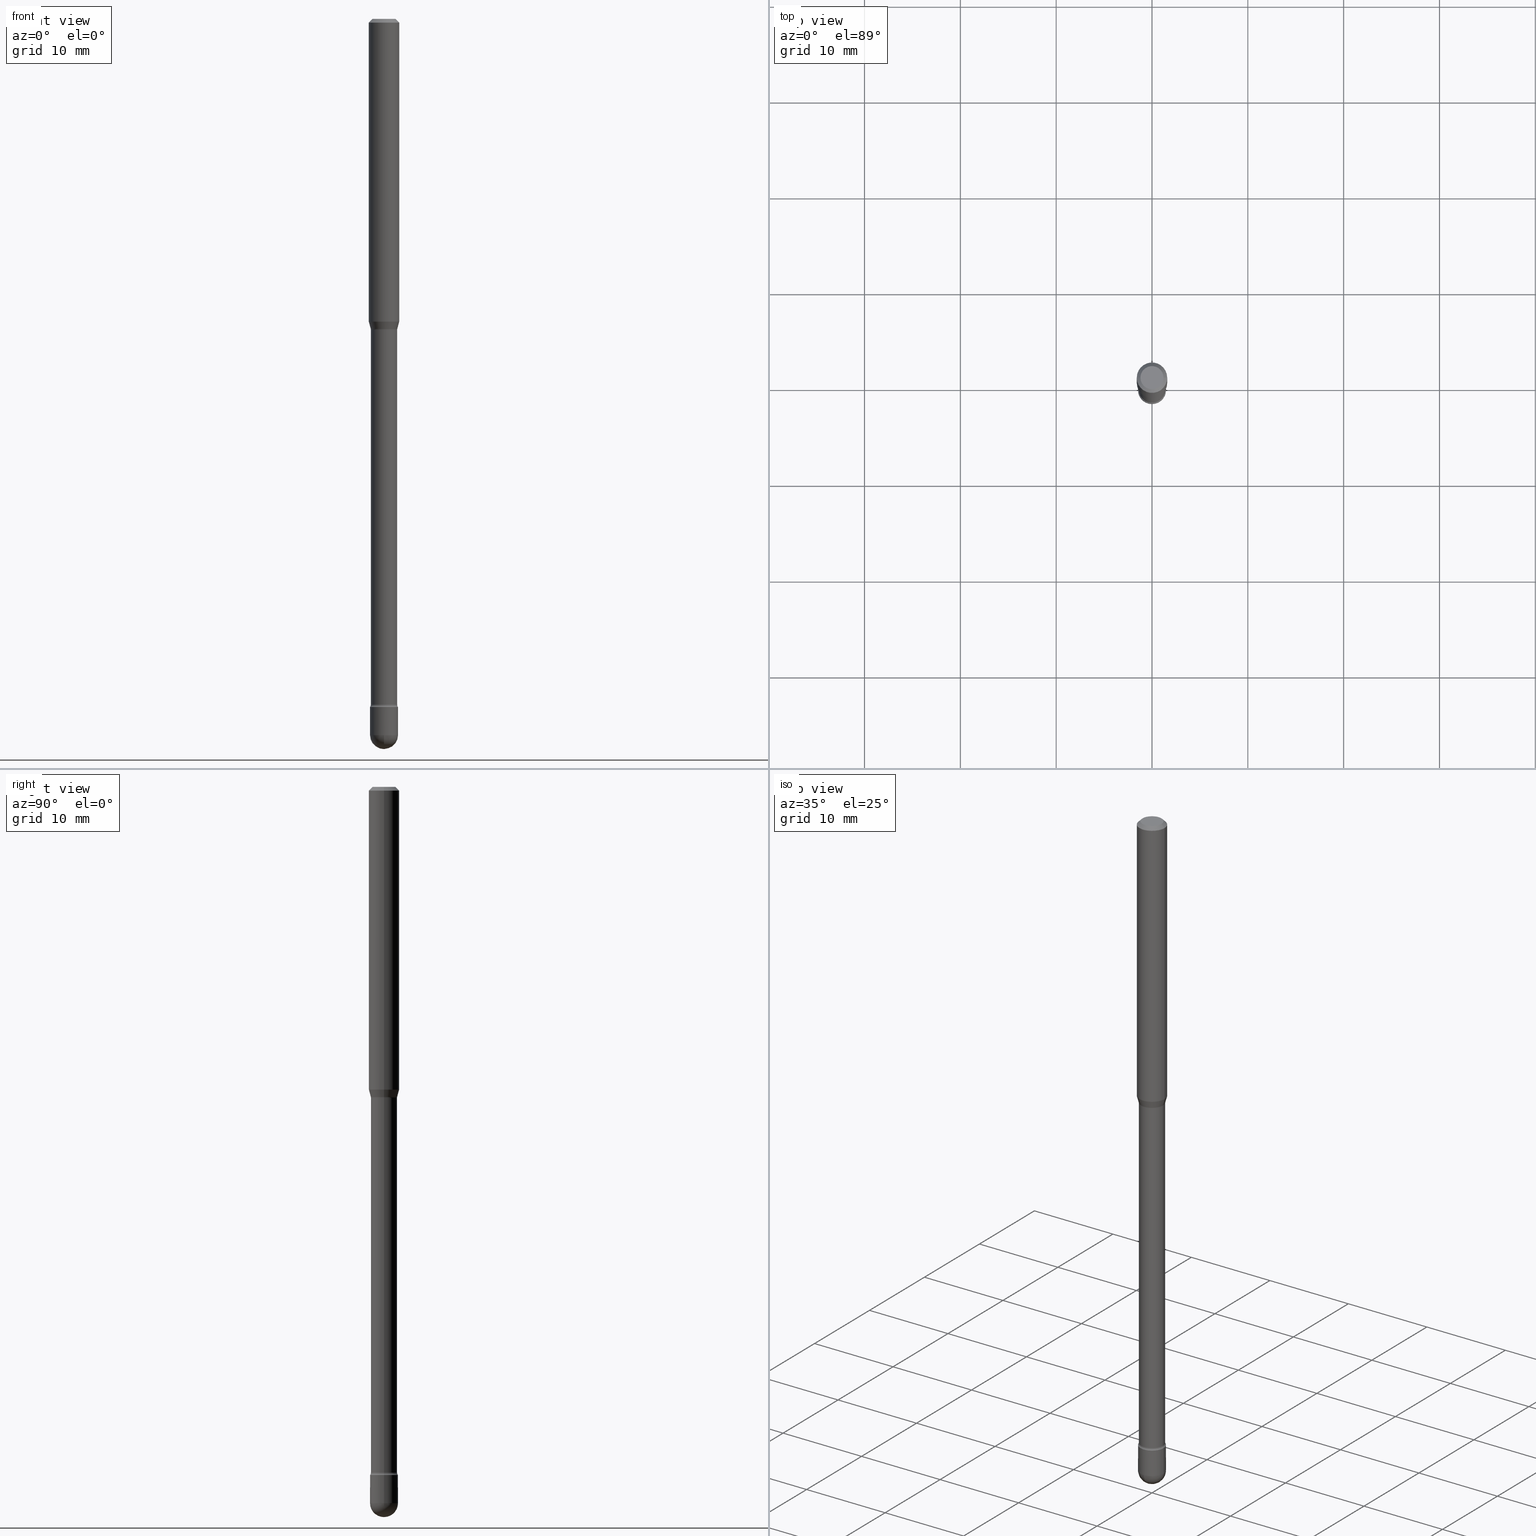
[diagram: canonical four-view strip — front | top / right | iso, engineering-drawing reading convention]
A machine part, canonical four-view strip (front | top / right | iso — engineering-drawing reading convention). The complete STEP part file that produces these views, byte-faithful:
ISO-10303-21;
HEADER;
FILE_DESCRIPTION (( 'STEP AP203' ),
    '1' );
FILE_NAME ('09582.STEP',
    '2024-04-10T01:04:10',
    ( '' ),
    ( '' ),
    'SwSTEP 2.0',
    'SolidWorks 2023',
    '' );
FILE_SCHEMA (( 'CONFIG_CONTROL_DESIGN' ));
ENDSEC;

DATA;
#1 = CYLINDRICAL_SURFACE ( 'NONE', #156, 0.05404999999999999388 ) ;
#2 =( NAMED_UNIT ( * ) SI_UNIT ( $, .STERADIAN. ) SOLID_ANGLE_UNIT ( ) );
#3 = CARTESIAN_POINT ( 'NONE',  ( 7.195791962199764526E-29, -1.027368383954595634E-14, -2.942499999999999893 ) ) ;
#4 = AXIS2_PLACEMENT_3D ( 'NONE', #451, #495, #160 ) ;
#5 = ADVANCED_FACE ( 'NONE', ( #99 ), #1, .T. ) ;
#6 = EDGE_LOOP ( 'NONE', ( #94, #422, #18, #175 ) ) ;
#7 =( NAMED_UNIT ( * ) PLANE_ANGLE_UNIT ( ) SI_UNIT ( $, .RADIAN. ) );
#8 = DIRECTION ( 'NONE',  ( 1.000000000000000000, -6.982962677686267499E-15, 0.000000000000000000 ) ) ;
#9 = CALENDAR_DATE ( 2024, 9, 4 ) ;
#10 = CC_DESIGN_PERSON_AND_ORGANIZATION_ASSIGNMENT ( #192, #318, ( #549 ) ) ;
#11 = LINE ( 'NONE', #500, #419 ) ;
#12 = EDGE_CURVE ( 'NONE', #453, #463, #473, .T. ) ;
#13 = VECTOR ( 'NONE', #229, 39.37007874015748854 ) ;
#14 = APPROVAL_STATUS ( 'not_yet_approved' ) ;
#15 = AXIS2_PLACEMENT_3D ( 'NONE', #36, #32, #294 ) ;
#16 = DIRECTION ( 'NONE',  ( 6.982962677686265922E-15, 1.000000000000000000, 0.000000000000000000 ) ) ;
#17 = CARTESIAN_POINT ( 'NONE',  ( 6.913340315085382316E-29, -9.870417744909574031E-15, -2.827000000000000401 ) ) ;
#18 = ORIENTED_EDGE ( 'NONE', *, *, #401, .T. ) ;
#19 = DATE_AND_TIME ( #362, #188 ) ;
#20 = DIRECTION ( 'NONE',  ( 1.000000000000000000, -6.982962677686265922E-15, 4.876176775795935232E-29 ) ) ;
#21 = PERSON_AND_ORGANIZATION_ROLE ( 'creator' ) ;
#22 = AXIS2_PLACEMENT_3D ( 'NONE', #263, #43, #177 ) ;
#23 = CARTESIAN_POINT ( 'NONE',  ( 7.195791962199764526E-29, -1.027368383954595634E-14, -2.942499999999999893 ) ) ;
#24 = CIRCLE ( 'NONE', #126, 0.05750000000000000250 ) ;
#25 = ORIENTED_EDGE ( 'NONE', *, *, #287, .T. ) ;
#26 = PRODUCT_DEFINITION ( 'UNKNOWN', '', #420, #139 ) ;
#27 = PLANE ( 'NONE',  #106 ) ;
#28 = ORIENTED_EDGE ( 'NONE', *, *, #257, .T. ) ;
#29 = DIRECTION ( 'NONE',  ( 1.000000000000000000, -6.982962677686265922E-15, 4.876176775795935232E-29 ) ) ;
#30 = ADVANCED_FACE ( 'NONE', ( #265 ), #250, .T. ) ;
#31 = VERTEX_POINT ( 'NONE', #485 ) ;
#32 = DIRECTION ( 'NONE',  ( -2.445468806185136597E-29, 3.491481338843145583E-15, 1.000000000000000000 ) ) ;
#33 = CIRCLE ( 'NONE', #546, 0.05750000000000000250 ) ;
#34 = ORIENTED_EDGE ( 'NONE', *, *, #132, .F. ) ;
#35 = EDGE_LOOP ( 'NONE', ( #127, #512, #210, #254, #471 ) ) ;
#36 = CARTESIAN_POINT ( 'NONE',  ( 6.889935568795809204E-29, -9.837001970108552726E-15, -2.817429341715430358 ) ) ;
#37 = VERTEX_POINT ( 'NONE', #391 ) ;
#38 = ADVANCED_FACE ( 'NONE', ( #315 ), #183, .F. ) ;
#39 = ORIENTED_EDGE ( 'NONE', *, *, #472, .F. ) ;
#40 = AXIS2_PLACEMENT_3D ( 'NONE', #322, #281, #504 ) ;
#41 = CC_DESIGN_APPROVAL ( #74, ( #420 ) ) ;
#42 = DIRECTION ( 'NONE',  ( 0.2588190451025229044, 1.565188264969609149E-15, 0.9659258262890676461 ) ) ;
#43 = DIRECTION ( 'NONE',  ( -2.445468806185136597E-29, 3.491481338843145583E-15, 1.000000000000000000 ) ) ;
#44 = DIRECTION ( 'NONE',  ( 1.000000000000000000, -6.982962677686267499E-15, 0.000000000000000000 ) ) ;
#45 = DIRECTION ( 'NONE',  ( 6.982962677686266711E-15, 1.000000000000000000, 0.000000000000000000 ) ) ;
#46 = ADVANCED_FACE ( 'NONE', ( #565 ), #92, .T. ) ;
#47 = ORIENTED_EDGE ( 'NONE', *, *, #403, .F. ) ;
#48 = AXIS2_PLACEMENT_3D ( 'NONE', #367, #411, #542 ) ;
#49 = AXIS2_PLACEMENT_3D ( 'NONE', #75, #475, #517 ) ;
#50 = DIRECTION ( 'NONE',  ( -2.445468806185136597E-29, 3.491481338843145583E-15, 1.000000000000000000 ) ) ;
#51 = CARTESIAN_POINT ( 'NONE',  ( 6.889935568795809204E-29, -9.837001970108552726E-15, -2.817429341715430358 ) ) ;
#52 = ADVANCED_FACE ( 'NONE', ( #525 ), #534, .T. ) ;
#53 = DIRECTION ( 'NONE',  ( 1.000000000000000000, -6.982962677686267499E-15, 4.884662768193073002E-29 ) ) ;
#54 = APPROVAL_DATE_TIME ( #446, #292 ) ;
#55 = CARTESIAN_POINT ( 'NONE',  ( -0.06250000000000000000, 4.440892098500642925E-16, 4.780733988912429571E-16 ) ) ;
#56 = ORIENTED_EDGE ( 'NONE', *, *, #122, .F. ) ;
#57 = CONICAL_SURFACE ( 'NONE', #4, 0.06250000000000000000, 0.7853981633974483900 ) ;
#58 = SHAPE_DEFINITION_REPRESENTATION ( #370, #109 ) ;
#59 = TOROIDAL_SURFACE ( 'NONE', #409, 0.06905000000000019456, 0.01500000000000020761 ) ;
#60 = EDGE_CURVE ( 'NONE', #31, #289, #345, .T. ) ;
#61 = DIRECTION ( 'NONE',  ( -2.445468806185136597E-29, 3.491481338843145583E-15, 1.000000000000000000 ) ) ;
#62 = EDGE_LOOP ( 'NONE', ( #256, #384, #522, #195 ) ) ;
#63 = APPROVAL_ROLE ( '' ) ;
#64 = CARTESIAN_POINT ( 'NONE',  ( -0.05456111260566397919, -4.057298690441964961E-15, -1.273092501787273401 ) ) ;
#65 = ORIENTED_EDGE ( 'NONE', *, *, #249, .F. ) ;
#66 = EDGE_CURVE ( 'NONE', #176, #453, #378, .T. ) ;
#67 = DIRECTION ( 'NONE',  ( -2.445468806185136597E-29, 3.491481338843145583E-15, 1.000000000000000000 ) ) ;
#68 = VERTEX_POINT ( 'NONE', #398 ) ;
#69 = CARTESIAN_POINT ( 'NONE',  ( -0.05750000000000000250, -9.663488719165706823E-15, -2.942499999999999893 ) ) ;
#70 = CIRCLE ( 'NONE', #397, 0.01500000000000020761 ) ;
#71 = ORIENTED_EDGE ( 'NONE', *, *, #153, .T. ) ;
#72 = DIRECTION ( 'NONE',  ( 1.000000000000000000, -6.982962677686262766E-15, 0.000000000000000000 ) ) ;
#73 = VERTEX_POINT ( 'NONE', #304 ) ;
#74 = APPROVAL ( #189, 'UNSPECIFIED' ) ;
#75 = CARTESIAN_POINT ( 'NONE',  ( -0.06905000000000000027, -3.967903881560739743E-15, -1.276974787463811323 ) ) ;
#76 = ORIENTED_EDGE ( 'NONE', *, *, #60, .T. ) ;
#77 = DIRECTION ( 'NONE',  ( -2.445468806185136597E-29, 3.491481338843145583E-15, 1.000000000000000000 ) ) ;
#78 = CIRCLE ( 'NONE', #198, 0.04749999999999999362 ) ;
#79 = CIRCLE ( 'NONE', #279, 0.01500000000000001853 ) ;
#80 = VERTEX_POINT ( 'NONE', #138 ) ;
#81 = ADVANCED_FACE ( 'NONE', ( #180 ), #439, .T. ) ;
#82 = PERSON ( 'UNSPECIFIED', 'UNSPECIFIED', 'UNSPECIFIED', ('UNSPECIFIED'), ('UNSPECIFIED'), ('UNSPECIFIED') ) ;
#83 = CARTESIAN_POINT ( 'NONE',  ( 3.113308000508972240E-29, -4.444978712611398731E-15, -1.273092501787273401 ) ) ;
#84 = ORIENTED_EDGE ( 'NONE', *, *, #399, .T. ) ;
#85 = DIRECTION ( 'NONE',  ( 1.000000000000000000, -6.982962677686266711E-15, 0.000000000000000000 ) ) ;
#86 = ORIENTED_EDGE ( 'NONE', *, *, #178, .T. ) ;
#87 = DIRECTION ( 'NONE',  ( 1.000000000000000000, -6.982962677686265922E-15, 4.883557194083113462E-29 ) ) ;
#88 = FACE_OUTER_BOUND ( 'NONE', #543, .T. ) ;
#89 = VECTOR ( 'NONE', #197, 39.37007874015748143 ) ;
#90 = AXIS2_PLACEMENT_3D ( 'NONE', #245, #423, #29 ) ;
#91 = ADVANCED_FACE ( 'NONE', ( #488 ), #173, .F. ) ;
#92 = CYLINDRICAL_SURFACE ( 'NONE', #440, 0.05404999999999999388 ) ;
#93 = DIRECTION ( 'NONE',  ( -2.445468806185136597E-29, 3.491481338843145583E-15, 1.000000000000000000 ) ) ;
#94 = ORIENTED_EDGE ( 'NONE', *, *, #445, .F. ) ;
#95 = MECHANICAL_CONTEXT ( 'NONE', #150, 'mechanical' ) ;
#96 = VECTOR ( 'NONE', #360, 39.37007874015748143 ) ;
#97 = CIRCLE ( 'NONE', #208, 0.05456111260566397919 ) ;
#98 = APPROVAL_DATE_TIME ( #499, #74 ) ;
#99 = FACE_OUTER_BOUND ( 'NONE', #337, .T. ) ;
#100 = APPROVAL_ROLE ( '' ) ;
#101 = LINE ( 'NONE', #547, #89 ) ;
#102 = ADVANCED_FACE ( 'NONE', ( #88 ), #407, .T. ) ;
#103 = CARTESIAN_POINT ( 'NONE',  ( 3.040852840997134988E-29, -4.341531947435473751E-15, -1.243464170676043423 ) ) ;
#104 = ORIENTED_EDGE ( 'NONE', *, *, #178, .F. ) ;
#105 = VECTOR ( 'NONE', #131, 39.37007874015748143 ) ;
#106 = AXIS2_PLACEMENT_3D ( 'NONE', #425, #330, #172 ) ;
#107 = DATE_TIME_ROLE ( 'classification_date' ) ;
#108 = DIRECTION ( 'NONE',  ( 0.7071067811865475727, -7.319954787623256045E-15, -0.7071067811865474617 ) ) ;
#109 = ADVANCED_BREP_SHAPE_REPRESENTATION ( '09582', ( #506, #515, #333 ), #271 ) ;
#110 = EDGE_LOOP ( 'NONE', ( #259, #191, #86, #39 ) ) ;
#111 = DIRECTION ( 'NONE',  ( -7.105427357601000281E-15, -1.000000000000000000, 0.000000000000000000 ) ) ;
#112 = EDGE_CURVE ( 'NONE', #424, #527, #353, .T. ) ;
#113 = ORIENTED_EDGE ( 'NONE', *, *, #523, .F. ) ;
#114 = PLANE ( 'NONE',  #261 ) ;
#115 = ORIENTED_EDGE ( 'NONE', *, *, #112, .T. ) ;
#116 = FACE_OUTER_BOUND ( 'NONE', #205, .T. ) ;
#117 = SECURITY_CLASSIFICATION ( '', '', #314 ) ;
#118 = EDGE_LOOP ( 'NONE', ( #84, #410, #412, #113 ) ) ;
#119 = CARTESIAN_POINT ( 'NONE',  ( -4.085620730619858383E-16, -0.05750000000001030676, -2.942499999999999893 ) ) ;
#120 = EDGE_LOOP ( 'NONE', ( #325, #167, #428, #236 ) ) ;
#121 = FACE_OUTER_BOUND ( 'NONE', #448, .T. ) ;
#122 = EDGE_CURVE ( 'NONE', #466, #320, #437, .T. ) ;
#123 = ORIENTED_EDGE ( 'NONE', *, *, #536, .T. ) ;
#124 = CARTESIAN_POINT ( 'NONE',  ( 3.122802009027644982E-29, -4.458533640603088529E-15, -1.276974787463811323 ) ) ;
#125 = AXIS2_PLACEMENT_3D ( 'NONE', #348, #311, #389 ) ;
#126 = AXIS2_PLACEMENT_3D ( 'NONE', #375, #461, #559 ) ;
#127 = ORIENTED_EDGE ( 'NONE', *, *, #257, .F. ) ;
#128 = CARTESIAN_POINT ( 'NONE',  ( 6.889935568795809204E-29, -9.837001970108552726E-15, -2.817429341715430358 ) ) ;
#129 = ORIENTED_EDGE ( 'NONE', *, *, #181, .T. ) ;
#130 = DIRECTION ( 'NONE',  ( -2.445468806185136597E-29, 3.491481338843145583E-15, 1.000000000000000000 ) ) ;
#131 = DIRECTION ( 'NONE',  ( -2.445468806185136877E-29, 3.491481338843145188E-15, 1.000000000000000000 ) ) ;
#132 = EDGE_CURVE ( 'NONE', #37, #527, #11, .T. ) ;
#133 = DIRECTION ( 'NONE',  ( 6.982962677686266711E-15, 1.000000000000000000, 0.000000000000000000 ) ) ;
#134 = CARTESIAN_POINT ( 'NONE',  ( -1.169113584055446105E-44, 1.669184350826100908E-30, 4.780733988912460139E-16 ) ) ;
#135 = CIRCLE ( 'NONE', #450, 0.05750000000000000250 ) ;
#136 = VECTOR ( 'NONE', #42, 39.37007874015748854 ) ;
#137 = AXIS2_PLACEMENT_3D ( 'NONE', #347, #480, #87 ) ;
#138 = CARTESIAN_POINT ( 'NONE',  ( -0.04749999999999999362, 3.578768372314208041E-16, -8.274703207154778150E-17 ) ) ;
#139 = DESIGN_CONTEXT ( 'detailed design', #413, 'design' ) ;
#140 = DIRECTION ( 'NONE',  ( 1.000000000000000000, 0.000000000000000000, 0.000000000000000000 ) ) ;
#141 = VERTEX_POINT ( 'NONE', #190 ) ;
#142 = PERSON_AND_ORGANIZATION ( #82, #225 ) ;
#143 = DIRECTION ( 'NONE',  ( -2.445468806185136877E-29, 3.491481338843145188E-15, 1.000000000000000000 ) ) ;
#144 = CIRCLE ( 'NONE', #262, 0.06250000000000000000 ) ;
#145 = CC_DESIGN_APPROVAL ( #292, ( #117 ) ) ;
#146 = COORDINATED_UNIVERSAL_TIME_OFFSET ( 5, 0, .BEHIND. ) ;
#147 = FACE_OUTER_BOUND ( 'NONE', #155, .T. ) ;
#148 = ORIENTED_EDGE ( 'NONE', *, *, #533, .T. ) ;
#149 = DIRECTION ( 'NONE',  ( -2.445468806185136597E-29, 3.491481338843145583E-15, 1.000000000000000000 ) ) ;
#150 = APPLICATION_CONTEXT ( 'configuration controlled 3d designs of mechanical parts and assemblies' ) ;
#151 = EDGE_CURVE ( 'NONE', #386, #562, #404, .T. ) ;
#152 = PERSON_AND_ORGANIZATION_ROLE ( 'design_supplier' ) ;
#153 = EDGE_CURVE ( 'NONE', #430, #562, #270, .T. ) ;
#154 = LINE ( 'NONE', #64, #13 ) ;
#155 = EDGE_LOOP ( 'NONE', ( #25, #372 ) ) ;
#156 = AXIS2_PLACEMENT_3D ( 'NONE', #134, #402, #309 ) ;
#157 = CIRCLE ( 'NONE', #474, 0.05405000000000000082 ) ;
#158 = PERSON_AND_ORGANIZATION ( #82, #225 ) ;
#159 = DIRECTION ( 'NONE',  ( 1.000000000000000000, -6.982962677686265922E-15, 4.883557194083112340E-29 ) ) ;
#160 = DIRECTION ( 'NONE',  ( -1.000000000000000000, 6.982962677686266711E-15, 0.000000000000000000 ) ) ;
#161 = CARTESIAN_POINT ( 'NONE',  ( -0.06250000000000000000, -3.897442737585411135E-15, -1.243464170676043423 ) ) ;
#162 = ORIENTED_EDGE ( 'NONE', *, *, #392, .T. ) ;
#163 = AXIS2_PLACEMENT_3D ( 'NONE', #283, #149, #53 ) ;
#164 = DIRECTION ( 'NONE',  ( 7.105427357601001859E-15, 1.000000000000000000, -3.491481338843145583E-15 ) ) ;
#165 = AXIS2_PLACEMENT_3D ( 'NONE', #435, #226, #133 ) ;
#166 = CC_DESIGN_SECURITY_CLASSIFICATION ( #117, ( #420 ) ) ;
#167 = ORIENTED_EDGE ( 'NONE', *, *, #293, .T. ) ;
#168 = CARTESIAN_POINT ( 'NONE',  ( 0.05404999999999998694, -1.021443110283749521E-14, -2.817429341715430358 ) ) ;
#169 = EDGE_LOOP ( 'NONE', ( #291, #129, #239, #555 ) ) ;
#170 = CARTESIAN_POINT ( 'NONE',  ( -0.05750000000000000250, -9.663488719165706823E-15, -2.827000000000000401 ) ) ;
#171 = ORIENTED_EDGE ( 'NONE', *, *, #552, .T. ) ;
#172 = DIRECTION ( 'NONE',  ( 1.000000000000000000, -6.982962677686265922E-15, 4.876176775795935793E-29 ) ) ;
#173 = TOROIDAL_SURFACE ( 'NONE', #217, 0.06905000000000019456, 0.01500000000000020761 ) ;
#174 = CIRCLE ( 'NONE', #452, 0.05456111260566397919 ) ;
#175 = ORIENTED_EDGE ( 'NONE', *, *, #310, .T. ) ;
#176 = VERTEX_POINT ( 'NONE', #364 ) ;
#177 = DIRECTION ( 'NONE',  ( 1.000000000000000000, -6.982962677686266711E-15, 4.852736867747366207E-29 ) ) ;
#178 = EDGE_CURVE ( 'NONE', #469, #382, #319, .T. ) ;
#179 = CARTESIAN_POINT ( 'NONE',  ( -0.05456111260566397919, -3.977370714013688837E-15, -1.273092501787273401 ) ) ;
#180 = FACE_OUTER_BOUND ( 'NONE', #201, .T. ) ;
#181 = EDGE_CURVE ( 'NONE', #339, #176, #324, .T. ) ;
#182 = CARTESIAN_POINT ( 'NONE',  ( 0.000000000000000000, 0.000000000000000000, 0.000000000000000000 ) ) ;
#183 = PLANE ( 'NONE',  #125 ) ;
#184 = CARTESIAN_POINT ( 'NONE',  ( 0.05456111260566397919, -4.825976925589788049E-15, -1.273092501787273401 ) ) ;
#185 = CARTESIAN_POINT ( 'NONE',  ( 3.113308000508972240E-29, -4.444978712611398731E-15, -1.273092501787273401 ) ) ;
#186 = DIRECTION ( 'NONE',  ( -2.445468806185136877E-29, 3.491481338843145188E-15, 1.000000000000000000 ) ) ;
#187 = UNCERTAINTY_MEASURE_WITH_UNIT (LENGTH_MEASURE( 1.000000000000000082E-05 ), #264, 'distance_accuracy_value', 'NONE');
#188 = LOCAL_TIME ( 21, 4, 10.00000000000000000, #405 ) ;
#189 = APPROVAL_STATUS ( 'not_yet_approved' ) ;
#190 = CARTESIAN_POINT ( 'NONE',  ( 0.05750000000000014128, -1.027193809887653405E-14, -2.827000000000000401 ) ) ;
#191 = ORIENTED_EDGE ( 'NONE', *, *, #467, .T. ) ;
#192 = PERSON_AND_ORGANIZATION ( #82, #225 ) ;
#193 = PRODUCT_RELATED_PRODUCT_CATEGORY ( 'detail', '', ( #549 ) ) ;
#194 = FACE_OUTER_BOUND ( 'NONE', #284, .T. ) ;
#195 = ORIENTED_EDGE ( 'NONE', *, *, #530, .T. ) ;
#196 = ADVANCED_FACE ( 'NONE', ( #538 ), #327, .T. ) ;
#197 = DIRECTION ( 'NONE',  ( -2.445468806185136877E-29, 3.491481338843145188E-15, 1.000000000000000000 ) ) ;
#198 = AXIS2_PLACEMENT_3D ( 'NONE', #540, #67, #285 ) ;
#199 = PERSON_AND_ORGANIZATION ( #82, #225 ) ;
#200 = DIRECTION ( 'NONE',  ( 2.438088387897960049E-29, -3.491481338843145188E-15, -1.000000000000000000 ) ) ;
#201 = EDGE_LOOP ( 'NONE', ( #56, #246, #115, #47 ) ) ;
#202 = CARTESIAN_POINT ( 'NONE',  ( 0.05405000000000000082, -4.835962773332031011E-15, -1.276974787463811323 ) ) ;
#203 = ORIENTED_EDGE ( 'NONE', *, *, #310, .F. ) ;
#204 = CARTESIAN_POINT ( 'NONE',  ( 0.06905000000000000027, -4.940707213497325170E-15, -1.276974787463811323 ) ) ;
#205 = EDGE_LOOP ( 'NONE', ( #34, #295, #492, #432 ) ) ;
#206 = ADVANCED_FACE ( 'NONE', ( #329 ), #57, .T. ) ;
#207 = TOROIDAL_SURFACE ( 'NONE', #48, 0.06905000000000000027, 0.01500000000000002720 ) ;
#208 = AXIS2_PLACEMENT_3D ( 'NONE', #83, #77, #342 ) ;
#209 = DIRECTION ( 'NONE',  ( -2.445468806185136597E-29, 3.491481338843145583E-15, 1.000000000000000000 ) ) ;
#210 = ORIENTED_EDGE ( 'NONE', *, *, #510, .T. ) ;
#211 = CARTESIAN_POINT ( 'NONE',  ( 3.668203209277725232E-31, -5.237222008264747365E-17, -0.01500000000000008271 ) ) ;
#212 = ORIENTED_EDGE ( 'NONE', *, *, #408, .T. ) ;
#213 = ADVANCED_FACE ( 'NONE', ( #147 ), #114, .F. ) ;
#214 = DIRECTION ( 'NONE',  ( 1.000000000000000000, -6.982962677686269077E-15, 4.883557194083114022E-29 ) ) ;
#215 = ORIENTED_EDGE ( 'NONE', *, *, #268, .F. ) ;
#216 = LENGTH_MEASURE_WITH_UNIT ( LENGTH_MEASURE( 0.02539999999999999897 ), #306 );
#217 = AXIS2_PLACEMENT_3D ( 'NONE', #51, #486, #227 ) ;
#218 = ADVANCED_FACE ( 'NONE', ( #194 ), #207, .F. ) ;
#219 = CARTESIAN_POINT ( 'NONE',  ( 7.195791962199764526E-29, -1.027368383954595634E-14, -2.942499999999999893 ) ) ;
#220 = CARTESIAN_POINT ( 'NONE',  ( 3.122802009027644982E-29, -4.458533640603088529E-15, -1.276974787463811323 ) ) ;
#221 = DIRECTION ( 'NONE',  ( -2.445468806185136597E-29, 3.491481338843145583E-15, 1.000000000000000000 ) ) ;
#222 = DIRECTION ( 'NONE',  ( 1.000000000000000000, -6.982962677686273810E-15, 0.000000000000000000 ) ) ;
#223 = CARTESIAN_POINT ( 'NONE',  ( -0.05404999999999999388, 3.840483486783357833E-16, 4.780733988912433515E-16 ) ) ;
#224 = CARTESIAN_POINT ( 'NONE',  ( -1.169113584055446105E-44, 1.669184350826100908E-30, 4.780733988912460139E-16 ) ) ;
#225 = ORGANIZATION ( 'UNSPECIFIED', 'UNSPECIFIED', '' ) ;
#226 = DIRECTION ( 'NONE',  ( -1.000000000000000000, 6.982962677686266711E-15, -4.883557194083112901E-29 ) ) ;
#227 = DIRECTION ( 'NONE',  ( 1.000000000000000000, -6.982962677686269077E-15, 4.883557194083114022E-29 ) ) ;
#228 = COORDINATED_UNIVERSAL_TIME_OFFSET ( 5, 0, .BEHIND. ) ;
#229 = DIRECTION ( 'NONE',  ( -0.2588190451025229044, 5.211531920934558141E-15, 0.9659258262890676461 ) ) ;
#230 = APPROVAL_DATE_TIME ( #19, #493 ) ;
#231 = CARTESIAN_POINT ( 'NONE',  ( 0.05750000000000000250, -4.015203539669603161E-16, 2.803801646082662941E-30 ) ) ;
#232 = CIRCLE ( 'NONE', #305, 0.06250000000000000000 ) ;
#233 = AXIS2_PLACEMENT_3D ( 'NONE', #338, #209, #557 ) ;
#234 = PERSON_AND_ORGANIZATION ( #82, #225 ) ;
#235 = DIRECTION ( 'NONE',  ( -2.445468806185136597E-29, 3.491481338843145583E-15, 1.000000000000000000 ) ) ;
#236 = ORIENTED_EDGE ( 'NONE', *, *, #66, .F. ) ;
#237 = CALENDAR_DATE ( 2024, 9, 4 ) ;
#238 = CARTESIAN_POINT ( 'NONE',  ( 6.913340315085382316E-29, -9.870417744909574031E-15, -2.827000000000000401 ) ) ;
#239 = ORIENTED_EDGE ( 'NONE', *, *, #552, .F. ) ;
#240 = DATE_AND_TIME ( #494, #341 ) ;
#241 = DIRECTION ( 'NONE',  ( -2.445468806185136597E-29, 3.491481338843145583E-15, 1.000000000000000000 ) ) ;
#242 = ORIENTED_EDGE ( 'NONE', *, *, #414, .F. ) ;
#243 = LOCAL_TIME ( 21, 4, 10.00000000000000000, #228 ) ;
#244 = DIRECTION ( 'NONE',  ( -2.445468806185136597E-29, 3.491481338843145583E-15, 1.000000000000000000 ) ) ;
#245 = CARTESIAN_POINT ( 'NONE',  ( 0.000000000000000000, 0.000000000000000000, 0.000000000000000000 ) ) ;
#246 = ORIENTED_EDGE ( 'NONE', *, *, #300, .T. ) ;
#247 = DIRECTION ( 'NONE',  ( 1.000000000000000000, -6.982962677686266711E-15, 4.852736867747366207E-29 ) ) ;
#248 = ORIENTED_EDGE ( 'NONE', *, *, #536, .F. ) ;
#249 = EDGE_CURVE ( 'NONE', #496, #466, #154, .T. ) ;
#250 = CONICAL_SURFACE ( 'NONE', #507, 0.05456111260566397919, 0.2617993877991516838 ) ;
#251 = CC_DESIGN_DATE_AND_TIME_ASSIGNMENT ( #274, #107, ( #117 ) ) ;
#252 = CIRCLE ( 'NONE', #556, 0.05405000000000000082 ) ;
#253 = CARTESIAN_POINT ( 'NONE',  ( 7.338865021636799762E-29, -1.047092315698189034E-14, -3.000000000000000444 ) ) ;
#254 = ORIENTED_EDGE ( 'NONE', *, *, #151, .T. ) ;
#255 = DIRECTION ( 'NONE',  ( 1.000000000000000000, -6.982962677686300632E-15, 0.000000000000000000 ) ) ;
#256 = ORIENTED_EDGE ( 'NONE', *, *, #354, .F. ) ;
#257 = EDGE_CURVE ( 'NONE', #453, #430, #101, .T. ) ;
#258 = FACE_OUTER_BOUND ( 'NONE', #62, .T. ) ;
#259 = ORIENTED_EDGE ( 'NONE', *, *, #60, .F. ) ;
#260 = SPHERICAL_SURFACE ( 'NONE', #165, 0.05750000000000007189 ) ;
#261 = AXIS2_PLACEMENT_3D ( 'NONE', #456, #200, #459 ) ;
#262 = AXIS2_PLACEMENT_3D ( 'NONE', #336, #427, #383 ) ;
#263 = CARTESIAN_POINT ( 'NONE',  ( -1.169113584055446105E-44, 1.669184350826100908E-30, 4.780733988912460139E-16 ) ) ;
#264 =( CONVERSION_BASED_UNIT ( 'INCH', #216 ) LENGTH_UNIT ( ) NAMED_UNIT ( #489 ) );
#265 = FACE_OUTER_BOUND ( 'NONE', #118, .T. ) ;
#266 = DIRECTION ( 'NONE',  ( -0.7071067811865475727, 2.468850131082257455E-15, -0.7071067811865474617 ) ) ;
#267 = DIRECTION ( 'NONE',  ( 1.000000000000000000, -6.982962677686267499E-15, 0.000000000000000000 ) ) ;
#268 = EDGE_CURVE ( 'NONE', #37, #80, #365, .T. ) ;
#269 = CARTESIAN_POINT ( 'NONE',  ( 3.113308000508972240E-29, -4.444978712611398731E-15, -1.273092501787273401 ) ) ;
#270 = CIRCLE ( 'NONE', #40, 0.05750000000000000250 ) ;
#271 =( GEOMETRIC_REPRESENTATION_CONTEXT ( 3 ) GLOBAL_UNCERTAINTY_ASSIGNED_CONTEXT ( ( #187 ) ) GLOBAL_UNIT_ASSIGNED_CONTEXT ( ( #264, #7, #2 ) ) REPRESENTATION_CONTEXT ( 'NONE', 'WORKASPACE' ) );
#272 = PERSON_AND_ORGANIZATION_ROLE ( 'classification_officer' ) ;
#273 = DIRECTION ( 'NONE',  ( 1.000000000000000000, -6.982962677686273810E-15, 0.000000000000000000 ) ) ;
#274 = DATE_AND_TIME ( #9, #298 ) ;
#275 = DIRECTION ( 'NONE',  ( 1.000000000000000000, -6.982962677686273810E-15, 0.000000000000000000 ) ) ;
#276 = DIRECTION ( 'NONE',  ( -2.445468806185136877E-29, 3.491481338843145188E-15, 1.000000000000000000 ) ) ;
#277 = AXIS2_PLACEMENT_3D ( 'NONE', #17, #241, #323 ) ;
#278 = ORIENTED_EDGE ( 'NONE', *, *, #445, .T. ) ;
#279 = AXIS2_PLACEMENT_3D ( 'NONE', #204, #553, #334 ) ;
#280 = COORDINATED_UNIVERSAL_TIME_OFFSET ( 5, 0, .BEHIND. ) ;
#281 = DIRECTION ( 'NONE',  ( -2.445468806185136597E-29, 3.491481338843145583E-15, 1.000000000000000000 ) ) ;
#282 = ORIENTED_EDGE ( 'NONE', *, *, #66, .T. ) ;
#283 = CARTESIAN_POINT ( 'NONE',  ( 2.023552857353652888E-45, -2.889097183224559242E-31, -8.274703207154537794E-17 ) ) ;
#284 = EDGE_LOOP ( 'NONE', ( #248, #361, #343, #242 ) ) ;
#285 = DIRECTION ( 'NONE',  ( 1.000000000000000000, -6.982962677686267499E-15, 4.884662768193073002E-29 ) ) ;
#286 = CLOSED_SHELL ( 'NONE', ( #218, #5, #371, #206, #349, #30, #102, #81, #373, #213, #38, #91, #46, #497 ) ) ;
#287 = EDGE_CURVE ( 'NONE', #80, #37, #78, .T. ) ;
#288 = DIRECTION ( 'NONE',  ( -6.982962677686266711E-15, -1.000000000000000000, 3.491481338843145583E-15 ) ) ;
#289 = VERTEX_POINT ( 'NONE', #503 ) ;
#290 = DIRECTION ( 'NONE',  ( -2.445468806185136597E-29, 3.491481338843145583E-15, 1.000000000000000000 ) ) ;
#291 = ORIENTED_EDGE ( 'NONE', *, *, #293, .F. ) ;
#292 = APPROVAL ( #443, 'UNSPECIFIED' ) ;
#293 = EDGE_CURVE ( 'NONE', #339, #463, #519, .T. ) ;
#294 = DIRECTION ( 'NONE',  ( 1.000000000000000000, -6.982962677686250933E-15, 0.000000000000000000 ) ) ;
#295 = ORIENTED_EDGE ( 'NONE', *, *, #287, .F. ) ;
#296 = CONICAL_SURFACE ( 'NONE', #357, 0.06250000000000000000, 0.7853981633974483900 ) ;
#297 = DIRECTION ( 'NONE',  ( -1.000000000000000000, 6.982962677686266711E-15, 0.000000000000000000 ) ) ;
#298 = LOCAL_TIME ( 21, 4, 10.00000000000000000, #280 ) ;
#299 = ORIENTED_EDGE ( 'NONE', *, *, #112, .F. ) ;
#300 = EDGE_CURVE ( 'NONE', #466, #424, #232, .T. ) ;
#301 = DIRECTION ( 'NONE',  ( -2.445468806185136597E-29, 3.491481338843145583E-15, 1.000000000000000000 ) ) ;
#302 = ORIENTED_EDGE ( 'NONE', *, *, #122, .T. ) ;
#303 = LINE ( 'NONE', #566, #464 ) ;
#304 = CARTESIAN_POINT ( 'NONE',  ( 0.05456111260566397919, -4.825976925589788049E-15, -1.273092501787273401 ) ) ;
#305 = AXIS2_PLACEMENT_3D ( 'NONE', #103, #61, #415 ) ;
#306 =( LENGTH_UNIT ( ) NAMED_UNIT ( * ) SI_UNIT ( $, .METRE. ) );
#307 = AXIS2_PLACEMENT_3D ( 'NONE', #269, #221, #8 ) ;
#308 = TOROIDAL_SURFACE ( 'NONE', #137, 0.06905000000000000027, 0.01500000000000002720 ) ;
#309 = DIRECTION ( 'NONE',  ( 1.000000000000000000, -6.982962677686266711E-15, 4.825802158028139437E-29 ) ) ;
#310 = EDGE_CURVE ( 'NONE', #141, #68, #135, .T. ) ;
#311 = DIRECTION ( 'NONE',  ( -2.438088387897960049E-29, 3.491481338843145188E-15, 1.000000000000000000 ) ) ;
#312 = DIRECTION ( 'NONE',  ( -2.445468806185136597E-29, 3.491481338843145583E-15, 1.000000000000000000 ) ) ;
#313 = DIRECTION ( 'NONE',  ( -1.000000000000000000, 6.982962677686266711E-15, -4.883557194083112901E-29 ) ) ;
#314 = SECURITY_CLASSIFICATION_LEVEL ( 'unclassified' ) ;
#315 = FACE_OUTER_BOUND ( 'NONE', #426, .T. ) ;
#316 = CIRCLE ( 'NONE', #49, 0.01500000000000001853 ) ;
#317 = EDGE_CURVE ( 'NONE', #562, #430, #528, .T. ) ;
#318 = PERSON_AND_ORGANIZATION_ROLE ( 'design_owner' ) ;
#319 = LINE ( 'NONE', #406, #482 ) ;
#320 = VERTEX_POINT ( 'NONE', #418 ) ;
#321 = PERSON_AND_ORGANIZATION_ROLE ( 'creator' ) ;
#322 = CARTESIAN_POINT ( 'NONE',  ( 6.913340315085382316E-29, -9.870417744909574031E-15, -2.827000000000000401 ) ) ;
#323 = DIRECTION ( 'NONE',  ( 1.000000000000000000, -6.982962677686273810E-15, 0.000000000000000000 ) ) ;
#324 = CIRCLE ( 'NONE', #356, 0.05750000000000007189 ) ;
#325 = ORIENTED_EDGE ( 'NONE', *, *, #181, .F. ) ;
#326 = CIRCLE ( 'NONE', #15, 0.05404999999999998694 ) ;
#327 = CYLINDRICAL_SURFACE ( 'NONE', #433, 0.05750000000000000250 ) ;
#328 = CC_DESIGN_PERSON_AND_ORGANIZATION_ASSIGNMENT ( #158, #321, ( #420 ) ) ;
#329 = FACE_OUTER_BOUND ( 'NONE', #516, .T. ) ;
#330 = DIRECTION ( 'NONE',  ( -2.438088387897960049E-29, 3.491481338843145188E-15, 1.000000000000000000 ) ) ;
#331 = ORIENTED_EDGE ( 'NONE', *, *, #479, .F. ) ;
#332 = AXIS2_PLACEMENT_3D ( 'NONE', #531, #313, #45 ) ;
#333 = AXIS2_PLACEMENT_3D ( 'NONE', #182, #532, #140 ) ;
#334 = DIRECTION ( 'NONE',  ( 1.000000000000000000, -6.982962677686259611E-15, 0.000000000000000000 ) ) ;
#335 = ORIENTED_EDGE ( 'NONE', *, *, #300, .F. ) ;
#336 = CARTESIAN_POINT ( 'NONE',  ( 3.668203209277725232E-31, -5.237222008264747365E-17, -0.01500000000000008271 ) ) ;
#337 = EDGE_LOOP ( 'NONE', ( #162, #76, #508, #104 ) ) ;
#338 = CARTESIAN_POINT ( 'NONE',  ( 6.889935568795809204E-29, -9.837001970108552726E-15, -2.817429341715430358 ) ) ;
#339 = VERTEX_POINT ( 'NONE', #253 ) ;
#340 = AXIS2_PLACEMENT_3D ( 'NONE', #498, #545, #111 ) ;
#341 = LOCAL_TIME ( 21, 4, 10.00000000000000000, #146 ) ;
#342 = DIRECTION ( 'NONE',  ( 1.000000000000000000, -6.982962677686267499E-15, 0.000000000000000000 ) ) ;
#343 = ORIENTED_EDGE ( 'NONE', *, *, #472, .T. ) ;
#344 = CARTESIAN_POINT ( 'NONE',  ( 7.195791962199764526E-29, -1.027368383954595634E-14, -2.942499999999999893 ) ) ;
#345 = LINE ( 'NONE', #223, #105 ) ;
#346 = EDGE_CURVE ( 'NONE', #424, #466, #483, .T. ) ;
#347 = CARTESIAN_POINT ( 'NONE',  ( 3.122802009027644982E-29, -4.458533640603088529E-15, -1.276974787463811323 ) ) ;
#348 = CARTESIAN_POINT ( 'NONE',  ( 4.015203539670294894E-16, 0.05749999999999013539, -2.827000000000000401 ) ) ;
#349 = ADVANCED_FACE ( 'NONE', ( #550 ), #385, .T. ) ;
#350 = CARTESIAN_POINT ( 'NONE',  ( 7.195791962199764526E-29, -1.027368383954595634E-14, -2.942499999999999893 ) ) ;
#351 = DIRECTION ( 'NONE',  ( -2.445468806185136597E-29, 3.491481338843145583E-15, 1.000000000000000000 ) ) ;
#352 = DIRECTION ( 'NONE',  ( 1.000000000000000000, -6.982962677686266711E-15, 0.000000000000000000 ) ) ;
#353 = LINE ( 'NONE', #537, #462 ) ;
#354 = EDGE_CURVE ( 'NONE', #496, #289, #316, .T. ) ;
#355 = CARTESIAN_POINT ( 'NONE',  ( 0.000000000000000000, 0.000000000000000000, 0.000000000000000000 ) ) ;
#356 = AXIS2_PLACEMENT_3D ( 'NONE', #23, #159, #16 ) ;
#357 = AXIS2_PLACEMENT_3D ( 'NONE', #211, #561, #297 ) ;
#358 = ORIENTED_EDGE ( 'NONE', *, *, #523, .T. ) ;
#359 = PERSON_AND_ORGANIZATION ( #82, #225 ) ;
#360 = DIRECTION ( 'NONE',  ( -2.445468806185136877E-29, 3.491481338843145188E-15, 1.000000000000000000 ) ) ;
#361 = ORIENTED_EDGE ( 'NONE', *, *, #354, .T. ) ;
#362 = CALENDAR_DATE ( 2024, 9, 4 ) ;
#363 = ADVANCED_FACE ( 'NONE', ( #429 ), #421, .T. ) ;
#364 = CARTESIAN_POINT ( 'NONE',  ( 4.015203539670324969E-16, 0.05749999999998976763, -2.942499999999999893 ) ) ;
#365 = CIRCLE ( 'NONE', #163, 0.04749999999999999362 ) ;
#366 = CIRCLE ( 'NONE', #380, 0.01500000000000020761 ) ;
#367 = CARTESIAN_POINT ( 'NONE',  ( 3.122802009027644982E-29, -4.458533640603088529E-15, -1.276974787463811323 ) ) ;
#368 = ORIENTED_EDGE ( 'NONE', *, *, #401, .F. ) ;
#369 = CARTESIAN_POINT ( 'NONE',  ( 0.06250000000000000000, -4.777967114790866210E-15, -1.243464170676043423 ) ) ;
#370 = PRODUCT_DEFINITION_SHAPE ( 'NONE', 'NONE',  #26 ) ;
#371 = ADVANCED_FACE ( 'NONE', ( #121 ), #59, .F. ) ;
#372 = ORIENTED_EDGE ( 'NONE', *, *, #268, .T. ) ;
#373 = ADVANCED_FACE ( 'NONE', ( #116 ), #296, .T. ) ;
#374 = CC_DESIGN_DATE_AND_TIME_ASSIGNMENT ( #240, #417, ( #26 ) ) ;
#375 = CARTESIAN_POINT ( 'NONE',  ( 6.913340315085382316E-29, -9.870417744909574031E-15, -2.827000000000000401 ) ) ;
#376 = ADVANCED_FACE ( 'NONE', ( #514 ), #27, .T. ) ;
#377 = ORIENTED_EDGE ( 'NONE', *, *, #346, .T. ) ;
#378 = CIRCLE ( 'NONE', #554, 0.05750000000000000250 ) ;
#379 = AXIS2_PLACEMENT_3D ( 'NONE', #344, #50, #222 ) ;
#380 = AXIS2_PLACEMENT_3D ( 'NONE', #465, #164, #511 ) ;
#381 = CARTESIAN_POINT ( 'NONE',  ( 3.040852840997134988E-29, -4.341531947435473751E-15, -1.243464170676043423 ) ) ;
#382 = VERTEX_POINT ( 'NONE', #202 ) ;
#383 = DIRECTION ( 'NONE',  ( 1.000000000000000000, -6.982962677686266711E-15, 0.000000000000000000 ) ) ;
#384 = ORIENTED_EDGE ( 'NONE', *, *, #399, .F. ) ;
#385 = CYLINDRICAL_SURFACE ( 'NONE', #388, 0.06250000000000000000 ) ;
#386 = VERTEX_POINT ( 'NONE', #470 ) ;
#387 = CLOSED_SHELL ( 'NONE', ( #363, #513, #376, #52, #196 ) ) ;
#388 = AXIS2_PLACEMENT_3D ( 'NONE', #468, #244, #247 ) ;
#389 = DIRECTION ( 'NONE',  ( 1.000000000000000000, -6.982962677686265922E-15, 4.876176775795935793E-29 ) ) ;
#390 = CARTESIAN_POINT ( 'NONE',  ( 3.668203209277725232E-31, -5.237222008264747365E-17, -0.01500000000000008271 ) ) ;
#391 = CARTESIAN_POINT ( 'NONE',  ( 0.04749999999999999362, -4.035134999187581581E-16, -8.274703207154280181E-17 ) ) ;
#392 = EDGE_CURVE ( 'NONE', #469, #31, #326, .T. ) ;
#393 = CC_DESIGN_PERSON_AND_ORGANIZATION_ASSIGNMENT ( #234, #152, ( #420 ) ) ;
#394 = DIRECTION ( 'NONE',  ( 1.000000000000000000, -6.982962677686273810E-15, 0.000000000000000000 ) ) ;
#395 = DIRECTION ( 'NONE',  ( -2.445468806185136597E-29, 3.491481338843145583E-15, 1.000000000000000000 ) ) ;
#396 = VECTOR ( 'NONE', #276, 39.37007874015748143 ) ;
#397 = AXIS2_PLACEMENT_3D ( 'NONE', #521, #288, #255 ) ;
#398 = CARTESIAN_POINT ( 'NONE',  ( -0.05750000000000014128, -9.461855671847515666E-15, -2.827000000000000401 ) ) ;
#399 = EDGE_CURVE ( 'NONE', #73, #496, #97, .T. ) ;
#400 = LINE ( 'NONE', #184, #136 ) ;
#401 = EDGE_CURVE ( 'NONE', #469, #141, #70, .T. ) ;
#402 = DIRECTION ( 'NONE',  ( -2.445468806185136597E-29, 3.491481338843145583E-15, 1.000000000000000000 ) ) ;
#403 = EDGE_CURVE ( 'NONE', #320, #527, #144, .T. ) ;
#404 = LINE ( 'NONE', #231, #96 ) ;
#405 = COORDINATED_UNIVERSAL_TIME_OFFSET ( 5, 0, .BEHIND. ) ;
#406 = CARTESIAN_POINT ( 'NONE',  ( 0.05404999999999999388, -3.774291327289410031E-16, 4.780733988912486763E-16 ) ) ;
#407 = CONICAL_SURFACE ( 'NONE', #307, 0.05456111260566397919, 0.2617993877991516838 ) ;
#408 = EDGE_CURVE ( 'NONE', #68, #141, #24, .T. ) ;
#409 = AXIS2_PLACEMENT_3D ( 'NONE', #128, #505, #214 ) ;
#410 = ORIENTED_EDGE ( 'NONE', *, *, #249, .T. ) ;
#411 = DIRECTION ( 'NONE',  ( -2.445468806185136597E-29, 3.491481338843145583E-15, 1.000000000000000000 ) ) ;
#412 = ORIENTED_EDGE ( 'NONE', *, *, #346, .F. ) ;
#413 = APPLICATION_CONTEXT ( 'configuration controlled 3d designs of mechanical parts and assemblies' ) ;
#414 = EDGE_CURVE ( 'NONE', #73, #382, #79, .T. ) ;
#415 = DIRECTION ( 'NONE',  ( 1.000000000000000000, -6.982962677686262766E-15, 0.000000000000000000 ) ) ;
#416 = ORIENTED_EDGE ( 'NONE', *, *, #317, .T. ) ;
#417 = DATE_TIME_ROLE ( 'creation_date' ) ;
#418 = CARTESIAN_POINT ( 'NONE',  ( -0.06250000000000000000, -1.752862873908997996E-15, -0.01500000000000008271 ) ) ;
#419 = VECTOR ( 'NONE', #108, 39.37007874015748143 ) ;
#420 = PRODUCT_DEFINITION_FORMATION_WITH_SPECIFIED_SOURCE ( 'ANY', '', #549, .NOT_KNOWN. ) ;
#421 = CYLINDRICAL_SURFACE ( 'NONE', #90, 0.05750000000000000250 ) ;
#422 = ORIENTED_EDGE ( 'NONE', *, *, #392, .F. ) ;
#423 = DIRECTION ( 'NONE',  ( -2.445468806185136597E-29, 3.491481338843145583E-15, 1.000000000000000000 ) ) ;
#424 = VERTEX_POINT ( 'NONE', #369 ) ;
#425 = CARTESIAN_POINT ( 'NONE',  ( 6.913340315085382316E-29, -9.870417744909574031E-15, -2.827000000000000401 ) ) ;
#426 = EDGE_LOOP ( 'NONE', ( #203, #478 ) ) ;
#427 = DIRECTION ( 'NONE',  ( -2.445468806185136597E-29, 3.491481338843145583E-15, 1.000000000000000000 ) ) ;
#428 = ORIENTED_EDGE ( 'NONE', *, *, #12, .F. ) ;
#429 = FACE_OUTER_BOUND ( 'NONE', #460, .T. ) ;
#430 = VERTEX_POINT ( 'NONE', #170 ) ;
#431 = CARTESIAN_POINT ( 'NONE',  ( 0.05750000000000000250, -1.027193809887653405E-14, -2.827000000000000401 ) ) ;
#432 = ORIENTED_EDGE ( 'NONE', *, *, #403, .T. ) ;
#433 = AXIS2_PLACEMENT_3D ( 'NONE', #355, #235, #20 ) ;
#434 = AXIS2_PLACEMENT_3D ( 'NONE', #390, #301, #535 ) ;
#435 = CARTESIAN_POINT ( 'NONE',  ( 7.195791962199764526E-29, -1.027368383954595634E-14, -2.942499999999999893 ) ) ;
#436 = LOCAL_TIME ( 21, 4, 10.00000000000000000, #449 ) ;
#437 = LINE ( 'NONE', #55, #396 ) ;
#438 = DIRECTION ( 'NONE',  ( -2.445468806185136597E-29, 3.491481338843145583E-15, 1.000000000000000000 ) ) ;
#439 = CYLINDRICAL_SURFACE ( 'NONE', #22, 0.06250000000000000000 ) ;
#440 = AXIS2_PLACEMENT_3D ( 'NONE', #224, #438, #442 ) ;
#441 = APPROVAL_PERSON_ORGANIZATION ( #359, #493, #541 ) ;
#442 = DIRECTION ( 'NONE',  ( 1.000000000000000000, -6.982962677686266711E-15, 4.825802158028139437E-29 ) ) ;
#443 = APPROVAL_STATUS ( 'not_yet_approved' ) ;
#444 = DIRECTION ( 'NONE',  ( -2.445468806185136597E-29, 3.491481338843145583E-15, 1.000000000000000000 ) ) ;
#445 = EDGE_CURVE ( 'NONE', #31, #68, #366, .T. ) ;
#446 = DATE_AND_TIME ( #237, #436 ) ;
#447 = DIRECTION ( 'NONE',  ( -2.445468806185136597E-29, 3.491481338843145583E-15, 1.000000000000000000 ) ) ;
#448 = EDGE_LOOP ( 'NONE', ( #548, #278, #212, #368 ) ) ;
#449 = COORDINATED_UNIVERSAL_TIME_OFFSET ( 5, 0, .BEHIND. ) ;
#450 = AXIS2_PLACEMENT_3D ( 'NONE', #238, #447, #275 ) ;
#451 = CARTESIAN_POINT ( 'NONE',  ( 3.668203209277725232E-31, -5.237222008264747365E-17, -0.01500000000000008271 ) ) ;
#452 = AXIS2_PLACEMENT_3D ( 'NONE', #477, #93, #44 ) ;
#453 = VERTEX_POINT ( 'NONE', #69 ) ;
#454 = CC_DESIGN_PERSON_AND_ORGANIZATION_ASSIGNMENT ( #458, #21, ( #26 ) ) ;
#455 = APPLICATION_PROTOCOL_DEFINITION ( 'international standard', 'config_control_design', 1994, #413 ) ;
#456 = CARTESIAN_POINT ( 'NONE',  ( 3.316907271900976096E-16, 0.04749999999999999362, 3.181781981480094004E-17 ) ) ;
#457 = ORIENTED_EDGE ( 'NONE', *, *, #132, .T. ) ;
#458 = PERSON_AND_ORGANIZATION ( #82, #225 ) ;
#459 = DIRECTION ( 'NONE',  ( -1.000000000000000000, 6.982962677686265922E-15, -4.876176775795935793E-29 ) ) ;
#460 = EDGE_LOOP ( 'NONE', ( #282, #28, #558, #551, #171 ) ) ;
#461 = DIRECTION ( 'NONE',  ( -2.445468806185136597E-29, 3.491481338843145583E-15, 1.000000000000000000 ) ) ;
#462 = VECTOR ( 'NONE', #143, 39.37007874015748143 ) ;
#463 = VERTEX_POINT ( 'NONE', #119 ) ;
#464 = VECTOR ( 'NONE', #266, 39.37007874015748143 ) ;
#465 = CARTESIAN_POINT ( 'NONE',  ( -0.06905000000000019456, -9.346372211066203151E-15, -2.817429341715430358 ) ) ;
#466 = VERTEX_POINT ( 'NONE', #161 ) ;
#467 = EDGE_CURVE ( 'NONE', #31, #469, #501, .T. ) ;
#468 = CARTESIAN_POINT ( 'NONE',  ( -1.169113584055446105E-44, 1.669184350826100908E-30, 4.780733988912460139E-16 ) ) ;
#469 = VERTEX_POINT ( 'NONE', #168 ) ;
#470 = CARTESIAN_POINT ( 'NONE',  ( 0.05750000000000000250, -1.047357114619472521E-14, -2.942499999999999893 ) ) ;
#471 = ORIENTED_EDGE ( 'NONE', *, *, #153, .F. ) ;
#472 = EDGE_CURVE ( 'NONE', #289, #382, #252, .T. ) ;
#473 = CIRCLE ( 'NONE', #544, 0.05750000000000000250 ) ;
#474 = AXIS2_PLACEMENT_3D ( 'NONE', #220, #312, #352 ) ;
#475 = DIRECTION ( 'NONE',  ( 7.105427357601001859E-15, 1.000000000000000000, -3.491481338843145583E-15 ) ) ;
#476 = EDGE_LOOP ( 'NONE', ( #416, #71 ) ) ;
#477 = CARTESIAN_POINT ( 'NONE',  ( 3.113308000508972240E-29, -4.444978712611398731E-15, -1.273092501787273401 ) ) ;
#478 = ORIENTED_EDGE ( 'NONE', *, *, #408, .F. ) ;
#479 = EDGE_CURVE ( 'NONE', #80, #320, #303, .T. ) ;
#480 = DIRECTION ( 'NONE',  ( -2.445468806185136597E-29, 3.491481338843145583E-15, 1.000000000000000000 ) ) ;
#481 = DIRECTION ( 'NONE',  ( 1.000000000000000000, -6.982962677686273810E-15, 0.000000000000000000 ) ) ;
#482 = VECTOR ( 'NONE', #186, 39.37007874015748143 ) ;
#483 = CIRCLE ( 'NONE', #563, 0.06250000000000000000 ) ;
#484 = APPROVAL_PERSON_ORGANIZATION ( #142, #292, #63 ) ;
#485 = CARTESIAN_POINT ( 'NONE',  ( -0.05404999999999998694, -9.457404646638868942E-15, -2.817429341715430358 ) ) ;
#486 = DIRECTION ( 'NONE',  ( -2.445468806185136597E-29, 3.491481338843145583E-15, 1.000000000000000000 ) ) ;
#487 = CARTESIAN_POINT ( 'NONE',  ( 0.06250000000000000000, -4.888073874380391431E-16, -0.01500000000000008271 ) ) ;
#488 = FACE_OUTER_BOUND ( 'NONE', #6, .T. ) ;
#489 = DIMENSIONAL_EXPONENTS ( 1.000000000000000000, 0.000000000000000000, 0.000000000000000000, 0.000000000000000000, 0.000000000000000000, 0.000000000000000000, 0.000000000000000000 ) ;
#490 = PERSON_AND_ORGANIZATION ( #82, #225 ) ;
#491 = APPROVAL_PERSON_ORGANIZATION ( #199, #74, #100 ) ;
#492 = ORIENTED_EDGE ( 'NONE', *, *, #479, .T. ) ;
#493 = APPROVAL ( #14, 'UNSPECIFIED' ) ;
#494 = CALENDAR_DATE ( 2024, 9, 4 ) ;
#495 = DIRECTION ( 'NONE',  ( 2.445468806185136597E-29, -3.491481338843145583E-15, -1.000000000000000000 ) ) ;
#496 = VERTEX_POINT ( 'NONE', #179 ) ;
#497 = ADVANCED_FACE ( 'NONE', ( #258 ), #308, .F. ) ;
#498 = CARTESIAN_POINT ( 'NONE',  ( 7.195791962199764526E-29, -1.027368383954595634E-14, -2.942499999999999893 ) ) ;
#499 = DATE_AND_TIME ( #502, #243 ) ;
#500 = CARTESIAN_POINT ( 'NONE',  ( 0.06250000000000000000, -4.811533449433681963E-16, -0.01500000000000008271 ) ) ;
#501 = CIRCLE ( 'NONE', #233, 0.05404999999999998694 ) ;
#502 = CALENDAR_DATE ( 2024, 9, 4 ) ;
#503 = CARTESIAN_POINT ( 'NONE',  ( -0.05405000000000000082, -6.763719456677488542E-15, -1.276974787463811323 ) ) ;
#504 = DIRECTION ( 'NONE',  ( 1.000000000000000000, -6.982962677686273810E-15, 0.000000000000000000 ) ) ;
#505 = DIRECTION ( 'NONE',  ( -2.445468806185136597E-29, 3.491481338843145583E-15, 1.000000000000000000 ) ) ;
#506 = MANIFOLD_SOLID_BREP ( 'Body-Move/Copy2[1]', #387 ) ;
#507 = AXIS2_PLACEMENT_3D ( 'NONE', #185, #351, #267 ) ;
#508 = ORIENTED_EDGE ( 'NONE', *, *, #530, .F. ) ;
#509 = CIRCLE ( 'NONE', #434, 0.06250000000000000000 ) ;
#510 = EDGE_CURVE ( 'NONE', #463, #386, #529, .T. ) ;
#511 = DIRECTION ( 'NONE',  ( -1.000000000000000000, 7.105427357601020791E-15, 0.000000000000000000 ) ) ;
#512 = ORIENTED_EDGE ( 'NONE', *, *, #12, .T. ) ;
#513 = ADVANCED_FACE ( 'NONE', ( #526 ), #260, .T. ) ;
#514 = FACE_OUTER_BOUND ( 'NONE', #476, .T. ) ;
#515 = MANIFOLD_SOLID_BREP ( 'Body-Move/Copy2[2]', #286 ) ;
#516 = EDGE_LOOP ( 'NONE', ( #215, #457, #148, #331 ) ) ;
#517 = DIRECTION ( 'NONE',  ( -1.000000000000000000, 7.105427357601014480E-15, 0.000000000000000000 ) ) ;
#518 = ORIENTED_EDGE ( 'NONE', *, *, #533, .F. ) ;
#519 = CIRCLE ( 'NONE', #340, 0.05750000000000007189 ) ;
#520 = CC_DESIGN_APPROVAL ( #493, ( #26 ) ) ;
#521 = CARTESIAN_POINT ( 'NONE',  ( 0.06905000000000019456, -1.031917554300279173E-14, -2.817429341715430358 ) ) ;
#522 = ORIENTED_EDGE ( 'NONE', *, *, #414, .T. ) ;
#523 = EDGE_CURVE ( 'NONE', #73, #424, #400, .T. ) ;
#524 = APPLICATION_PROTOCOL_DEFINITION ( 'international standard', 'config_control_design', 1994, #150 ) ;
#525 = FACE_OUTER_BOUND ( 'NONE', #169, .T. ) ;
#526 = FACE_OUTER_BOUND ( 'NONE', #120, .T. ) ;
#527 = VERTEX_POINT ( 'NONE', #487 ) ;
#528 = CIRCLE ( 'NONE', #277, 0.05750000000000000250 ) ;
#529 = CIRCLE ( 'NONE', #379, 0.05750000000000000250 ) ;
#530 = EDGE_CURVE ( 'NONE', #382, #289, #157, .T. ) ;
#531 = CARTESIAN_POINT ( 'NONE',  ( 7.195791962199764526E-29, -1.027368383954595634E-14, -2.942499999999999893 ) ) ;
#532 = DIRECTION ( 'NONE',  ( 0.000000000000000000, 0.000000000000000000, 1.000000000000000000 ) ) ;
#533 = EDGE_CURVE ( 'NONE', #527, #320, #509, .T. ) ;
#534 = SPHERICAL_SURFACE ( 'NONE', #332, 0.05750000000000007189 ) ;
#535 = DIRECTION ( 'NONE',  ( 1.000000000000000000, -6.982962677686266711E-15, 0.000000000000000000 ) ) ;
#536 = EDGE_CURVE ( 'NONE', #496, #73, #174, .T. ) ;
#537 = CARTESIAN_POINT ( 'NONE',  ( 0.06250000000000000000, -4.364351673553899931E-16, 4.780733988912490708E-16 ) ) ;
#538 = FACE_OUTER_BOUND ( 'NONE', #35, .T. ) ;
#539 = CC_DESIGN_PERSON_AND_ORGANIZATION_ASSIGNMENT ( #490, #272, ( #117 ) ) ;
#540 = CARTESIAN_POINT ( 'NONE',  ( 2.023552857353652888E-45, -2.889097183224559242E-31, -8.274703207154537794E-17 ) ) ;
#541 = APPROVAL_ROLE ( '' ) ;
#542 = DIRECTION ( 'NONE',  ( 1.000000000000000000, -6.982962677686265922E-15, 4.883557194083113462E-29 ) ) ;
#543 = EDGE_LOOP ( 'NONE', ( #65, #123, #358, #335 ) ) ;
#544 = AXIS2_PLACEMENT_3D ( 'NONE', #219, #444, #273 ) ;
#545 = DIRECTION ( 'NONE',  ( -1.000000000000000000, 7.105427357601001070E-15, -4.926315508542082329E-29 ) ) ;
#546 = AXIS2_PLACEMENT_3D ( 'NONE', #350, #564, #394 ) ;
#547 = CARTESIAN_POINT ( 'NONE',  ( -0.05750000000000000250, 4.085620730620576246E-16, -2.828387676896570712E-30 ) ) ;
#548 = ORIENTED_EDGE ( 'NONE', *, *, #467, .F. ) ;
#549 = PRODUCT ( '09582', '09582', '', ( #95 ) ) ;
#550 = FACE_OUTER_BOUND ( 'NONE', #560, .T. ) ;
#551 = ORIENTED_EDGE ( 'NONE', *, *, #151, .F. ) ;
#552 = EDGE_CURVE ( 'NONE', #386, #176, #33, .T. ) ;
#553 = DIRECTION ( 'NONE',  ( -6.982962677686266711E-15, -1.000000000000000000, 3.491481338843145583E-15 ) ) ;
#554 = AXIS2_PLACEMENT_3D ( 'NONE', #3, #395, #481 ) ;
#555 = ORIENTED_EDGE ( 'NONE', *, *, #510, .F. ) ;
#556 = AXIS2_PLACEMENT_3D ( 'NONE', #124, #130, #85 ) ;
#557 = DIRECTION ( 'NONE',  ( 1.000000000000000000, -6.982962677686250933E-15, 0.000000000000000000 ) ) ;
#558 = ORIENTED_EDGE ( 'NONE', *, *, #317, .F. ) ;
#559 = DIRECTION ( 'NONE',  ( 1.000000000000000000, -6.982962677686273810E-15, 0.000000000000000000 ) ) ;
#560 = EDGE_LOOP ( 'NONE', ( #377, #302, #518, #299 ) ) ;
#561 = DIRECTION ( 'NONE',  ( 2.445468806185136597E-29, -3.491481338843145583E-15, -1.000000000000000000 ) ) ;
#562 = VERTEX_POINT ( 'NONE', #431 ) ;
#563 = AXIS2_PLACEMENT_3D ( 'NONE', #381, #290, #72 ) ;
#564 = DIRECTION ( 'NONE',  ( -2.445468806185136597E-29, 3.491481338843145583E-15, 1.000000000000000000 ) ) ;
#565 = FACE_OUTER_BOUND ( 'NONE', #110, .T. ) ;
#566 = CARTESIAN_POINT ( 'NONE',  ( -0.06250000000000000000, 3.840629472727441958E-16, -0.01500000000000008271 ) ) ;
ENDSEC;
END-ISO-10303-21;
